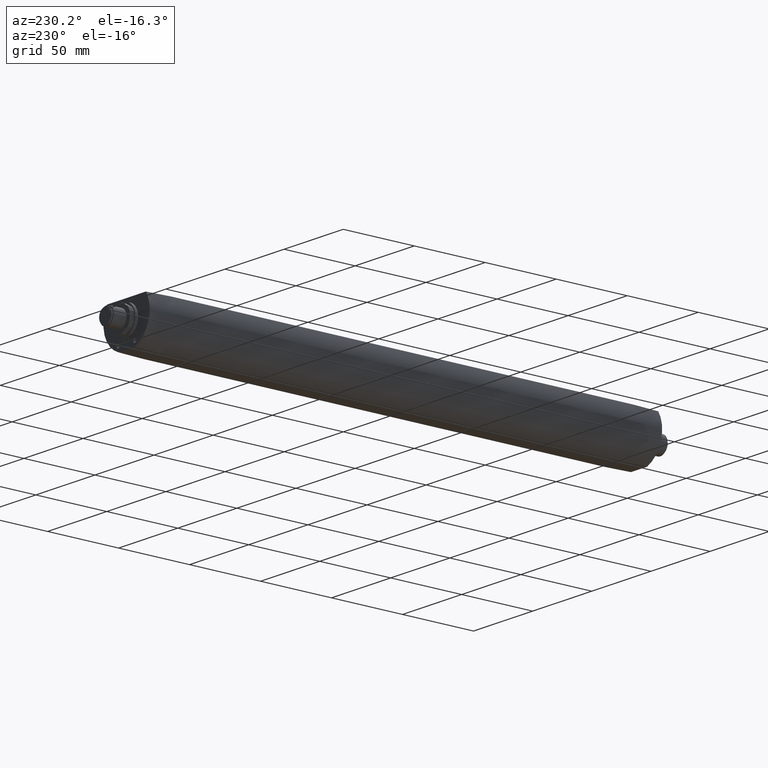
[diagram: clean part render]
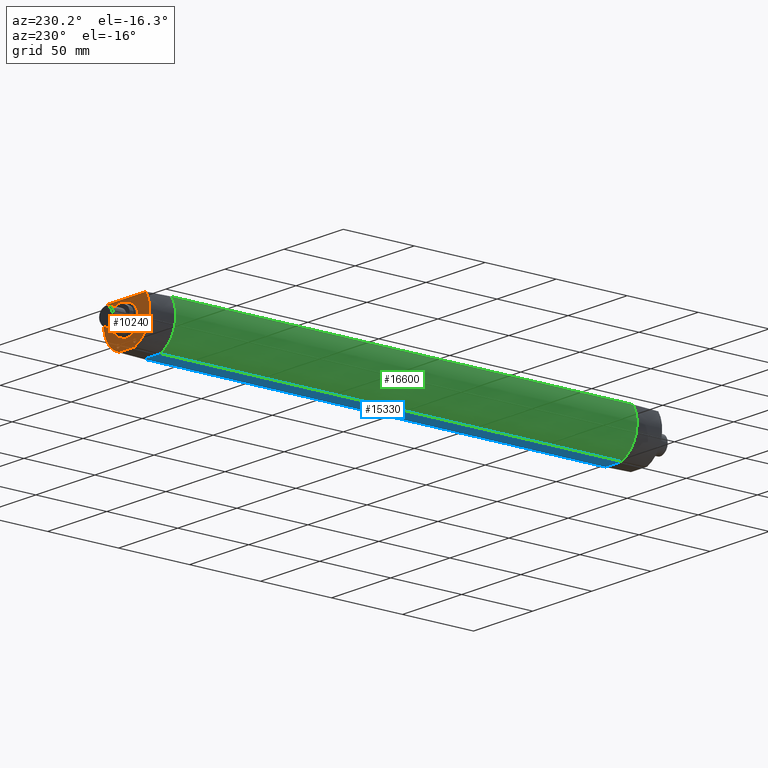
[diagram: same view with three faces highlighted in distinct colors, each labeled with its STEP entity id]
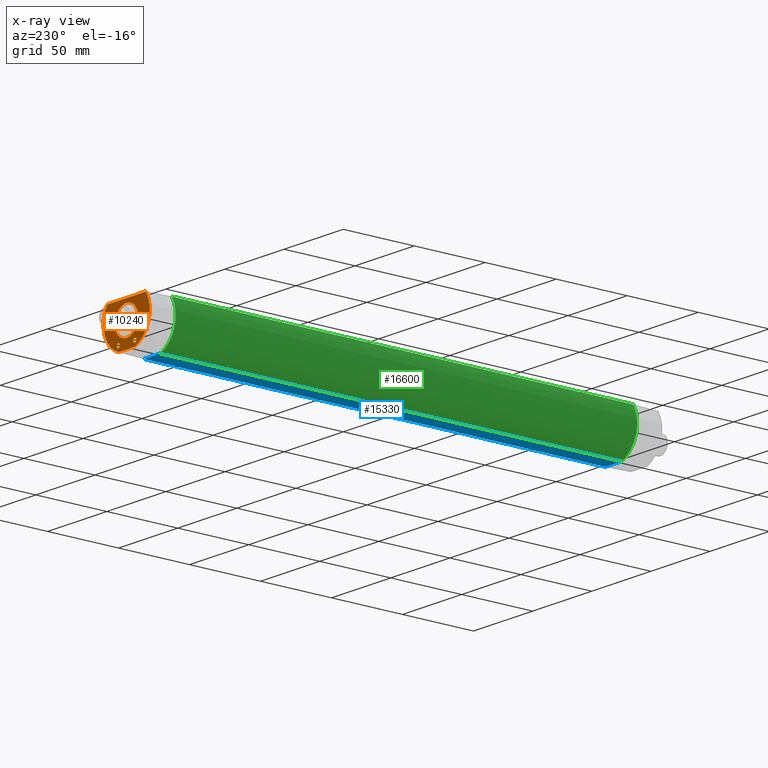
[diagram: x-ray of the same camera — body ghosted, the three highlighted faces saturated]
A machine part, auxiliary view with three faces highlighted in distinct colors.
The next image is the same camera in x-ray (body ghosted, the three faces saturated) — at least one of them is partly hidden behind the body in this view.
Their STEP definitions:

[orange] entity #10240 — the highlighted planar face has unit normal (0, 1, -0).
#8200=CARTESIAN_POINT('',(-9.875,-1.9,-93.));
#8210=VERTEX_POINT('',#8200);
#8290=CARTESIAN_POINT('',(9.87499999999999,-1.9,-93.));
#8300=VERTEX_POINT('',#8290);
#8330=CARTESIAN_POINT('',(-4.6594672564737E-15,-1.9,-93.));
#8340=DIRECTION('',(0.,0.,1.));
#8350=DIRECTION('',(-1.,0.,0.));
#8360=AXIS2_PLACEMENT_3D('',#8330,#8340,#8350);
#8370=CIRCLE('',#8360,9.875);
#8380=EDGE_CURVE('',#8300,#8210,#8370,.T.);
#9440=CARTESIAN_POINT('',(35.7703448023118,-21.2171073705584,-93.));
#9450=DIRECTION('',(0.,0.,-1.));
#9460=DIRECTION('',(-1.,0.,0.));
#9470=AXIS2_PLACEMENT_3D('',#9440,#9450,#9460);
#9480=PLANE('',#9470);
#9490=CARTESIAN_POINT('',(0.,10.7600894754653,-93.));
#9500=DIRECTION('',(-1.,0.,0.));
#9510=VECTOR('',#9500,1.);
#9520=LINE('',#9490,#9510);
#9530=CARTESIAN_POINT('',(16.3345515631189,10.7600894754653,-93.));
#9540=VERTEX_POINT('',#9530);
#9550=CARTESIAN_POINT('',(-16.3345515631189,10.7600894754653,-93.));
#9560=VERTEX_POINT('',#9550);
#9570=EDGE_CURVE('',#9540,#9560,#9520,.T.);
#9580=ORIENTED_EDGE('',*,*,#9570,.F.);
#9590=CARTESIAN_POINT('',(2.46912516096858E-14,6.25447521409836E-14,-93.
));
#9600=DIRECTION('',(-4.10824459617193E-15,-8.62636167101549E-15,-1.));
#9610=DIRECTION('',(0.,1.,-8.62636167101549E-15));
#9620=AXIS2_PLACEMENT_3D('',#9590,#9600,#9610);
#9630=CIRCLE('',#9620,19.5600894754653);
#9640=CARTESIAN_POINT('',(-6.88024154290118,-18.3100894754653,-93.));
#9650=VERTEX_POINT('',#9640);
#9660=EDGE_CURVE('',#9650,#9560,#9630,.T.);
#9670=ORIENTED_EDGE('',*,*,#9660,.T.);
#9680=CARTESIAN_POINT('',(0.,-18.3100894754653,-93.));
#9690=DIRECTION('',(1.,0.,0.));
#9700=VECTOR('',#9690,1.);
#9710=LINE('',#9680,#9700);
#9720=CARTESIAN_POINT('',(6.88024154290118,-18.3100894754653,-93.));
#9730=VERTEX_POINT('',#9720);
#9740=EDGE_CURVE('',#9650,#9730,#9710,.T.);
#9750=ORIENTED_EDGE('',*,*,#9740,.F.);
#9760=CARTESIAN_POINT('',(4.26570789520023E-14,-5.6579239104059E-15,
-92.9999999999999));
#9770=DIRECTION('',(5.35723590395572E-16,-7.06812270810495E-16,-1.));
#9780=DIRECTION('',(0.,1.,-7.06812270810495E-16));
#9790=AXIS2_PLACEMENT_3D('',#9760,#9770,#9780);
#9800=CIRCLE('',#9790,19.5600894754653);
#9810=EDGE_CURVE('',#9540,#9730,#9800,.T.);
#9820=ORIENTED_EDGE('',*,*,#9810,.T.);
#9830=EDGE_LOOP('',(#9820,#9750,#9670,#9580));
#9840=FACE_OUTER_BOUND('',#9830,.T.);
#9850=CARTESIAN_POINT('',(-7.00000000000036,-14.6000894754646,
-92.9999999999989));
#9860=DIRECTION('',(-2.00931613399223E-14,3.67878088453054E-14,-1.));
#9870=DIRECTION('',(0.,-1.,-3.67878088453054E-14));
#9880=AXIS2_PLACEMENT_3D('',#9850,#9860,#9870);
#9890=CIRCLE('',#9880,1.39999999999956);
#9900=CARTESIAN_POINT('',(-5.60000000000043,-14.6000894754651,
-92.9999999999989));
#9910=VERTEX_POINT('',#9900);
#9920=CARTESIAN_POINT('',(-7.00000000000036,-16.0000894754642,
-92.999999999999));
#9930=VERTEX_POINT('',#9920);
#9940=EDGE_CURVE('',#9910,#9930,#9890,.T.);
#9950=ORIENTED_EDGE('',*,*,#9940,.F.);
#9960=CARTESIAN_POINT('',(-7.00000000000036,-13.2000894754651,
-92.9999999999988));
#9970=VERTEX_POINT('',#9960);
#9980=EDGE_CURVE('',#9930,#9970,#9890,.T.);
#9990=ORIENTED_EDGE('',*,*,#9980,.F.);
#10000=EDGE_CURVE('',#9970,#9910,#9890,.T.);
#10010=ORIENTED_EDGE('',*,*,#10000,.F.);
#10020=EDGE_LOOP('',(#10010,#9990,#9950));
#10030=FACE_BOUND('',#10020,.T.);
#10040=EDGE_CURVE('',#8210,#8300,#8370,.T.);
#10050=ORIENTED_EDGE('',*,*,#10040,.T.);
#10060=ORIENTED_EDGE('',*,*,#8380,.T.);
#10070=EDGE_LOOP('',(#10060,#10050));
#10080=FACE_BOUND('',#10070,.T.);
#10090=CARTESIAN_POINT('',(6.99999999999983,-14.6000894754646,
-92.9999999999995));
#10100=DIRECTION('',(-9.9969270587588E-15,3.69422867469365E-14,-1.));
#10110=DIRECTION('',(0.,-1.,-3.69422867469365E-14));
#10120=AXIS2_PLACEMENT_3D('',#10090,#10100,#10110);
#10130=CIRCLE('',#10120,1.40000000000025);
#10140=CARTESIAN_POINT('',(6.99999999999983,-13.2000894754644,
-92.9999999999998));
#10150=VERTEX_POINT('',#10140);
#10160=CARTESIAN_POINT('',(6.99999999999983,-16.0000894754649,
-92.9999999999995));
#10170=VERTEX_POINT('',#10160);
#10180=EDGE_CURVE('',#10150,#10170,#10130,.T.);
#10190=ORIENTED_EDGE('',*,*,#10180,.F.);
#10200=EDGE_CURVE('',#10170,#10150,#10130,.T.);
#10210=ORIENTED_EDGE('',*,*,#10200,.F.);
#10220=EDGE_LOOP('',(#10210,#10190));
#10230=FACE_BOUND('',#10220,.T.);
#10240=ADVANCED_FACE('',(#9840,#10030,#10080,#10230),#9480,.T.);

[blue] entity #15330 — the highlighted planar face has unit normal (-0, -0, -1).
#14730=CARTESIAN_POINT('',(6.95970545353766,-18.7500000000003,
-74.9999999999736));
#14740=VERTEX_POINT('',#14730);
#14830=CARTESIAN_POINT('',(-6.95970545353751,-18.75,-75.));
#14840=VERTEX_POINT('',#14830);
#14870=CARTESIAN_POINT('',(0.,-18.75,-75.));
#14880=DIRECTION('',(1.,0.,0.));
#14890=VECTOR('',#14880,1.);
#14900=LINE('',#14870,#14890);
#14910=EDGE_CURVE('',#14840,#14740,#14900,.T.);
#15030=CARTESIAN_POINT('',(7.3076945062144,-18.75,78.75000378));
#15040=DIRECTION('',(-0.,-1.,-0.));
#15050=DIRECTION('',(-1.,0.,0.));
#15060=AXIS2_PLACEMENT_3D('',#15030,#15040,#15050);
#15070=PLANE('',#15060);
#15080=ORIENTED_EDGE('',*,*,#14910,.T.);
#15090=CARTESIAN_POINT('',(-6.95970545353749,-18.75,-75.5000000002358));
#15100=DIRECTION('',(0.,0.,1.));
#15110=VECTOR('',#15100,1.);
#15120=LINE('',#15090,#15110);
#15130=CARTESIAN_POINT('',(-6.95970545353835,-18.75,250.));
#15140=VERTEX_POINT('',#15130);
#15150=EDGE_CURVE('',#14840,#15140,#15120,.T.);
#15160=ORIENTED_EDGE('',*,*,#15150,.F.);
#15170=CARTESIAN_POINT('',(1.77635683940025E-14,-18.75,250.));
#15180=DIRECTION('',(-1.,0.,0.));
#15190=VECTOR('',#15180,1.);
#15200=LINE('',#15170,#15190);
#15210=CARTESIAN_POINT('',(6.95970545353756,-18.75,250.));
#15220=VERTEX_POINT('',#15210);
#15230=EDGE_CURVE('',#15220,#15140,#15200,.T.);
#15240=ORIENTED_EDGE('',*,*,#15230,.T.);
#15250=CARTESIAN_POINT('',(6.95970545353759,-18.75,-75.4999999999999));
#15260=DIRECTION('',(0.,0.,-1.));
#15270=VECTOR('',#15260,1.);
#15280=LINE('',#15250,#15270);
#15290=EDGE_CURVE('',#15220,#14740,#15280,.T.);
#15300=ORIENTED_EDGE('',*,*,#15290,.F.);
#15310=EDGE_LOOP('',(#15300,#15240,#15160,#15080));
#15320=FACE_OUTER_BOUND('',#15310,.T.);
#15330=ADVANCED_FACE('',(#15320),#15070,.T.);

[green] entity #16600 — the highlighted cylindrical surface (partial cylindrical patch) has radius 20 mm, axis along (0, -1, 0).
#14830=CARTESIAN_POINT('',(-6.95970545353751,-18.75,-75.));
#14840=VERTEX_POINT('',#14830);
#15090=CARTESIAN_POINT('',(-6.95970545353749,-18.75,-75.5000000002358));
#15100=DIRECTION('',(0.,0.,1.));
#15110=VECTOR('',#15100,1.);
#15120=LINE('',#15090,#15110);
#15130=CARTESIAN_POINT('',(-6.95970545353835,-18.75,250.));
#15140=VERTEX_POINT('',#15130);
#15150=EDGE_CURVE('',#14840,#15140,#15120,.T.);
#16080=CARTESIAN_POINT('',(-16.5698521417664,11.2,-75.));
#16090=VERTEX_POINT('',#16080);
#16170=CARTESIAN_POINT('',(-16.5698521417664,11.2,250.));
#16180=VERTEX_POINT('',#16170);
#16210=CARTESIAN_POINT('',(-16.5698521417664,11.2,-75.5000000002358));
#16220=DIRECTION('',(0.,0.,-1.));
#16230=VECTOR('',#16220,1.);
#16240=LINE('',#16210,#16230);
#16250=EDGE_CURVE('',#16180,#16090,#16240,.T.);
#16370=CARTESIAN_POINT('',(5.32907051820075E-15,1.19904086659517E-14,
-75.5000000002358));
#16380=DIRECTION('',(0.,0.,1.));
#16390=DIRECTION('',(1.,0.,0.));
#16400=AXIS2_PLACEMENT_3D('',#16370,#16380,#16390);
#16410=CYLINDRICAL_SURFACE('',#16400,20.);
#16420=ORIENTED_EDGE('',*,*,#16250,.T.);
#16430=CARTESIAN_POINT('',(2.37848639894136E-13,-1.61093695319497E-14,
249.999999999988));
#16440=DIRECTION('',(-6.86924452968795E-15,1.16626265454226E-15,1.));
#16450=DIRECTION('',(1.,8.01134335989377E-30,6.86924452968795E-15));
#16460=AXIS2_PLACEMENT_3D('',#16430,#16440,#16450);
#16470=CIRCLE('',#16460,20.0000000000003);
#16480=EDGE_CURVE('',#16180,#15140,#16470,.T.);
#16490=ORIENTED_EDGE('',*,*,#16480,.F.);
#16500=ORIENTED_EDGE('',*,*,#15150,.T.);
#16510=CARTESIAN_POINT('',(5.19843624293478E-14,1.14904835442307E-13,
-75.0000000000696));
#16520=DIRECTION('',(-2.05412229808596E-15,-4.31318083550774E-15,-1.));
#16530=DIRECTION('',(1.,-8.8598009298935E-30,-2.05412229808596E-15));
#16540=AXIS2_PLACEMENT_3D('',#16510,#16520,#16530);
#16550=CIRCLE('',#16540,19.9999999999992);
#16560=EDGE_CURVE('',#14840,#16090,#16550,.T.);
#16570=ORIENTED_EDGE('',*,*,#16560,.F.);
#16580=EDGE_LOOP('',(#16570,#16500,#16490,#16420));
#16590=FACE_OUTER_BOUND('',#16580,.T.);
#16600=ADVANCED_FACE('',(#16590),#16410,.T.);